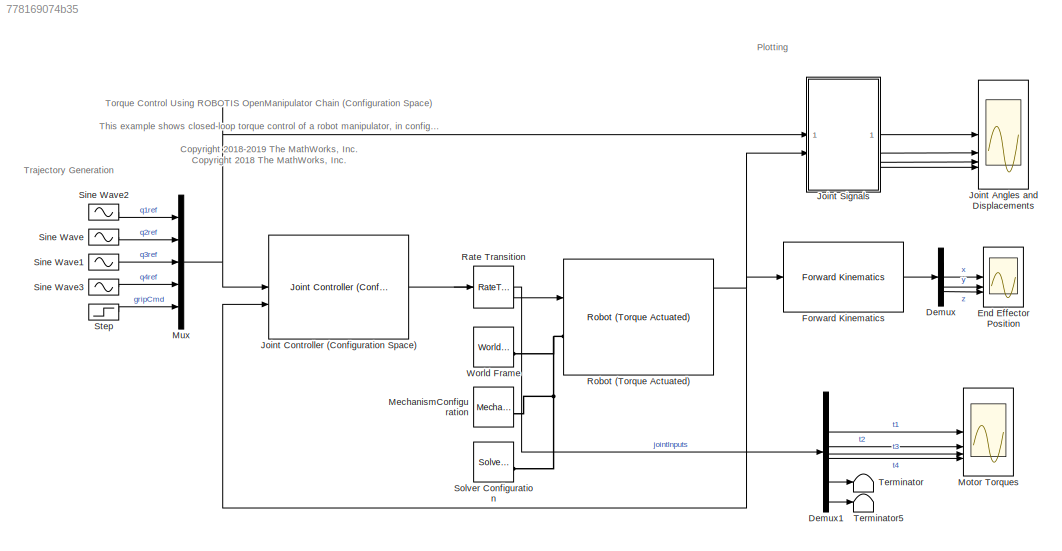
MODEL slx_778169074b35
KIND model
CONFIG AbsTol = auto
CONFIG EnableMultiTasking = off
CONFIG FixedStep = auto
CONFIG MaxStep = auto
CONFIG MinStep = auto
CONFIG PostLoadFcn = % Insert Communication Stuff Here
CONFIG PreLoadFcn = openManipulatorParameters;
CONFIG RelTol = 1e-3
CONFIG SampleTimeConstraint = Unconstrained
CONFIG SolverName = VariableStepAuto
CONFIG StartTime = 0.0
CONFIG StopTime = 20
BLOCK [Demux] Demux
  Outputs = 3
BLOCK [Demux] Demux1
  Outputs = 6
BLOCK [Scope] End Effector Position
  Floating = off
  NumInputPorts = 3
  ScopeSpecificationString = Simulink.scopes.TimeScopeBlockCfg('CurrentConfiguration', extmgr.ConfigurationSet(extmgr.Configuration('Core','General UI',true),extmgr.Configuration('Core','Source UI',true),extmgr.Configuration('Sources','WiredSimulink',true,'DataLoggingVariableName','ScopeData1'),extmgr.Configuration('Visuals','Time Domain',true,'SerializedDisplays',{struct('MinYLimReal','-0.16192','MaxYLimReal','0.33324','YLab...<+2758ch>
BLOCK [Reference] Forward Kinematics  REF=OpenManipulatorLib/Forward Kinematics
  SourceBlock = OpenManipulatorLib/Forward Kinematics
  SourceType = SubSystem
BLOCK [Scope] Joint Angles and Displacements
  Floating = off
  NumInputPorts = 4
  ScopeSpecificationString = Simulink.scopes.TimeScopeBlockCfg('CurrentConfiguration', extmgr.ConfigurationSet(extmgr.Configuration('Core','General UI',true),extmgr.Configuration('Core','Source UI',true),extmgr.Configuration('Sources','WiredSimulink',true),extmgr.Configuration('Visuals','Time Domain',true,'SerializedDisplays',{struct('MinYLimReal','-2.61799','MaxYLimReal','2.61799','YLabelReal','','MinYLimMag','0.00000','MaxY...<+3519ch>
BLOCK [Reference] Joint Controller (Configuration Space)  REF=OpenManipulatorLib/Joint Controller (Configuration Space)
  SourceBlock = OpenManipulatorLib/Joint Controller (Configuration Space)
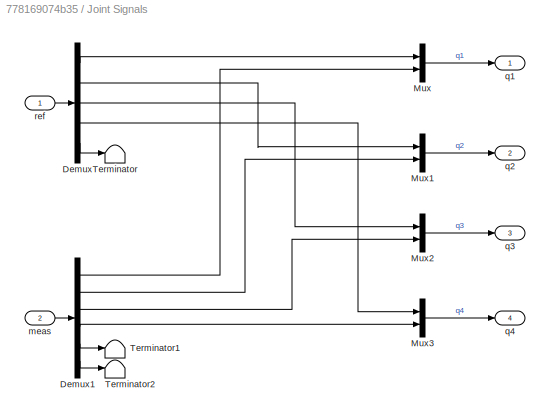
BLOCK [SubSystem] Joint Signals
BLOCK [Demux] Joint Signals/Demux
  Outputs = 5
BLOCK [Demux] Joint Signals/Demux1
  Outputs = 6
BLOCK [Mux] Joint Signals/Mux
  DisplayOption = bar
  Inputs = 2
BLOCK [Mux] Joint Signals/Mux1
  DisplayOption = bar
  Inputs = 2
BLOCK [Mux] Joint Signals/Mux2
  DisplayOption = bar
  Inputs = 2
BLOCK [Mux] Joint Signals/Mux3
  DisplayOption = bar
  Inputs = 2
BLOCK [Terminator] Joint Signals/Terminator
BLOCK [Terminator] Joint Signals/Terminator1
BLOCK [Terminator] Joint Signals/Terminator2
BLOCK [Inport] Joint Signals/meas
  Port = 2
BLOCK [Outport] Joint Signals/q1
  VectorParamsAs1DForOutWhenUnconnected = off
BLOCK [Outport] Joint Signals/q2
  Port = 2
  VectorParamsAs1DForOutWhenUnconnected = off
BLOCK [Outport] Joint Signals/q3
  Port = 3
  VectorParamsAs1DForOutWhenUnconnected = off
BLOCK [Outport] Joint Signals/q4
  Port = 4
  VectorParamsAs1DForOutWhenUnconnected = off
BLOCK [Inport] Joint Signals/ref
BLOCK [Reference] MechanismConfiguration  REF=sm_lib/Utilities/Mechanism
Configuration
  SourceBlock = sm_lib/Utilities/Mechanism\nConfiguration
  SourceType = Mechanism\nConfiguration
BLOCK [Scope] Motor Torques
  Floating = off
  NumInputPorts = 4
  ScopeSpecificationString = Simulink.scopes.TimeScopeBlockCfg('CurrentConfiguration', extmgr.ConfigurationSet(extmgr.Configuration('Core','General UI',true),extmgr.Configuration('Core','Source UI',true),extmgr.Configuration('Sources','WiredSimulink',true,'DataLoggingVariableName','ScopeData2'),extmgr.Configuration('Visuals','Time Domain',true,'SerializedDisplays',{struct('MinYLimReal','-0.5918','MaxYLimReal','0.19941','YLabe...<+1515ch>
BLOCK [Mux] Mux
  DisplayOption = bar
  Inputs = 5
BLOCK [RateTransition] Rate Transition
BLOCK [Reference] Robot (Torque Actuated)  REF=OpenManipulatorLib/Robot 
(Torque Actuated)
  SourceBlock = OpenManipulatorLib/Robot \n(Torque Actuated)
BLOCK [Sin] Sine Wave
  Amplitude = -pi/6
  Frequency = 0.2
  SampleTime = TsCtrl
BLOCK [Sin] Sine Wave1
  Amplitude = -pi/6
  Frequency = 0.3
  SampleTime = TsCtrl
BLOCK [Sin] Sine Wave2
  Amplitude = 2*pi/3
  Frequency = 0.3
  SampleTime = TsCtrl
BLOCK [Sin] Sine Wave3
  Amplitude = pi/6
  Frequency = 0.25
  SampleTime = TsCtrl
BLOCK [Reference] Solver Configuration  REF=nesl_utility/Solver
Configuration
  SourceBlock = nesl_utility/Solver\nConfiguration
  SourceType = Solver\nConfiguration
BLOCK [Step] Step
  SampleTime = TsCtrl
  Time = 5
BLOCK [Terminator] Terminator
BLOCK [Terminator] Terminator5
BLOCK [Reference] World Frame  REF=sm_lib/Frames and
Transforms/World Frame
  SourceBlock = sm_lib/Frames and\nTransforms/World Frame
  SourceType = World Frame
ANNOTATION (root): Torque Control Using ROBOTIS OpenManipulator Chain (Configuration Space) This example shows closed-loop torque control of a robot manipulator, in configuration space, to track a set of reference joint angles and positions. <copyright redacted>
ANNOTATION (root): Plotting
ANNOTATION (root): Trajectory Generation
LINE Demux1:1 -> Motor Torques:1
LINE Demux1:2 -> Motor Torques:2
LINE Demux1:3 -> Motor Torques:3
LINE Demux1:4 -> Motor Torques:4
LINE Demux1:5 -> Terminator:1
LINE Demux1:6 -> Terminator5:1
LINE Demux:1 -> End Effector Position:1
LINE Demux:2 -> End Effector Position:2
LINE Demux:3 -> End Effector Position:3
LINE Forward Kinematics:1 -> Demux:1
NET Joint Controller (Configuration Space):1 -> Demux1:1, Rate Transition:1
LINE Joint Signals/Demux1:1 -> Joint Signals/Mux:2
LINE Joint Signals/Demux1:2 -> Joint Signals/Mux1:2
LINE Joint Signals/Demux1:3 -> Joint Signals/Mux2:2
LINE Joint Signals/Demux1:4 -> Joint Signals/Mux3:2
LINE Joint Signals/Demux1:5 -> Joint Signals/Terminator1:1
LINE Joint Signals/Demux1:6 -> Joint Signals/Terminator2:1
LINE Joint Signals/Demux:1 -> Joint Signals/Mux:1
LINE Joint Signals/Demux:2 -> Joint Signals/Mux1:1
LINE Joint Signals/Demux:3 -> Joint Signals/Mux2:1
LINE Joint Signals/Demux:4 -> Joint Signals/Mux3:1
LINE Joint Signals/Demux:5 -> Joint Signals/Terminator:1
LINE Joint Signals/Mux1:1 -> Joint Signals/q2:1
LINE Joint Signals/Mux2:1 -> Joint Signals/q3:1
LINE Joint Signals/Mux3:1 -> Joint Signals/q4:1
LINE Joint Signals/Mux:1 -> Joint Signals/q1:1
LINE Joint Signals/meas:1 -> Joint Signals/Demux1:1
LINE Joint Signals/ref:1 -> Joint Signals/Demux:1
LINE Joint Signals:1 -> Joint Angles and Displacements:1
LINE Joint Signals:2 -> Joint Angles and Displacements:2
LINE Joint Signals:3 -> Joint Angles and Displacements:3
LINE Joint Signals:4 -> Joint Angles and Displacements:4
NET Mux:1 -> Joint Controller (Configuration Space):1, Joint Signals:1
LINE Rate Transition:1 -> Robot (Torque Actuated):1
NET Robot (Torque Actuated):1 -> Forward Kinematics:1, Joint Controller (Configuration Space):2, Joint Signals:2
LINE Sine Wave1:1 -> Mux:3
LINE Sine Wave2:1 -> Mux:1
LINE Sine Wave3:1 -> Mux:4
LINE Sine Wave:1 -> Mux:2
LINE Step:1 -> Mux:5
PNET net1: MechanismConfiguration:RConn1 -- Robot (Torque Actuated):LConn1 -- Solver Configuration:RConn1 -- World Frame:RConn1
note: NET lines group one-source signal fan-out (src -> all destinations, sorted); 1:1 wires keep LINE; PNET lines group multi-terminal physical nets as a canonical sorted terminal list (undirected conserving connections); 2-terminal nets keep the pairwise PLINE form
